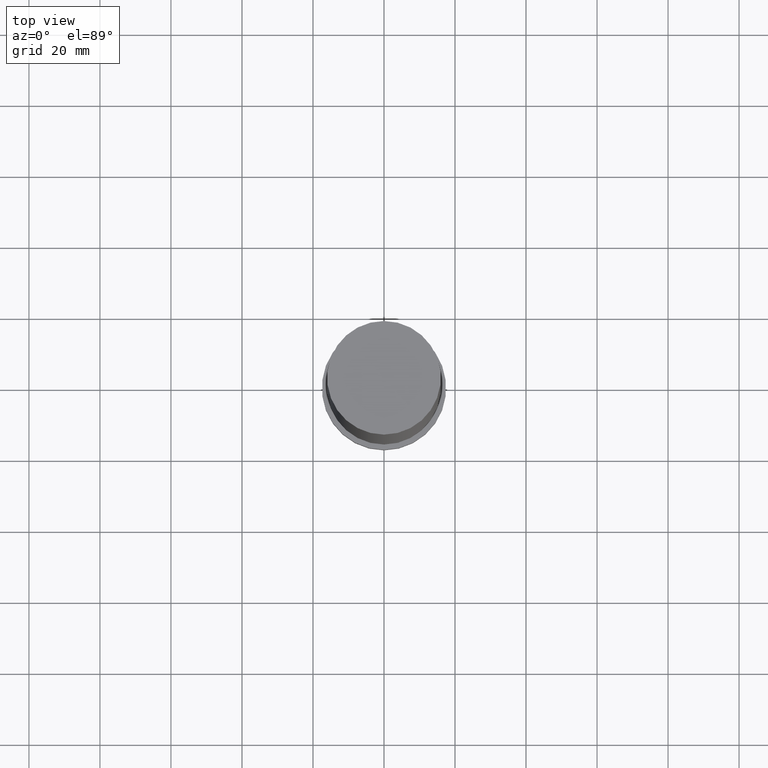
[diagram: clean part render]
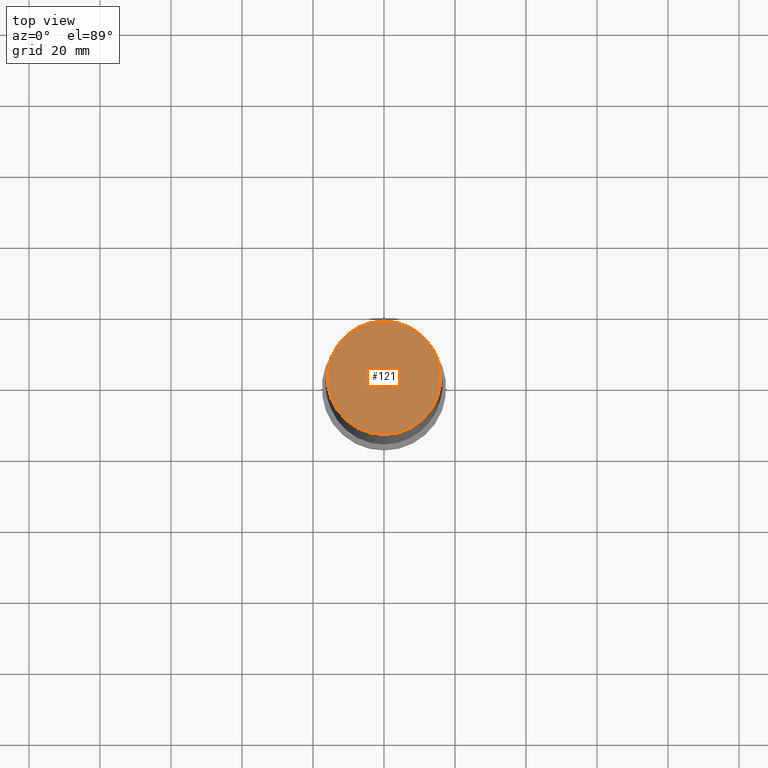
[diagram: same view with one face highlighted and labeled with its STEP entity id]
A machine part, top view. The second image highlights one B-rep face of the part: STEP entity #121.
In plain terms, the highlighted planar face has unit normal (-0, 0, 1).
Its self-contained STEP definition (entity closure, byte-faithful):
#72=EDGE_CURVE('Unnamed[1]',#171,#171,#172,.T.);
#121=ADVANCED_FACE('Unnamed[1]',(#246),#247,.T.);
#171=VERTEX_POINT('',#296);
#172=CIRCLE('',#297,16.0);
#246=FACE_OUTER_BOUND('',#389,.T.);
#247=PLANE('',#390);
#296=CARTESIAN_POINT('',(-1.22464679914735E-014,16.0000000000002,200.0));
#297=AXIS2_PLACEMENT_3D('',#428,#429,#430);
#389=EDGE_LOOP('',(#510));
#390=AXIS2_PLACEMENT_3D('',#511,#512,#513);
#428=CARTESIAN_POINT('',(-1.22464679914735E-014,2.14714984809132E-013,200.0));
#429=DIRECTION('',(6.12323399573677E-017,-1.07357492404576E-015,-1.0));
#430=DIRECTION('',(6.09103519881032E-032,1.0,-1.07357492404576E-015));
#510=ORIENTED_EDGE('',*,*,#72,.F.);
#511=CARTESIAN_POINT('',(-1.22464679914735E-014,8.0000000000002,200.0));
#512=DIRECTION('',(-6.12323399573677E-017,1.81018652890104E-015,1.0));
#513=DIRECTION('',(-1.06014804193147E-031,-1.0,1.81018652890104E-015));